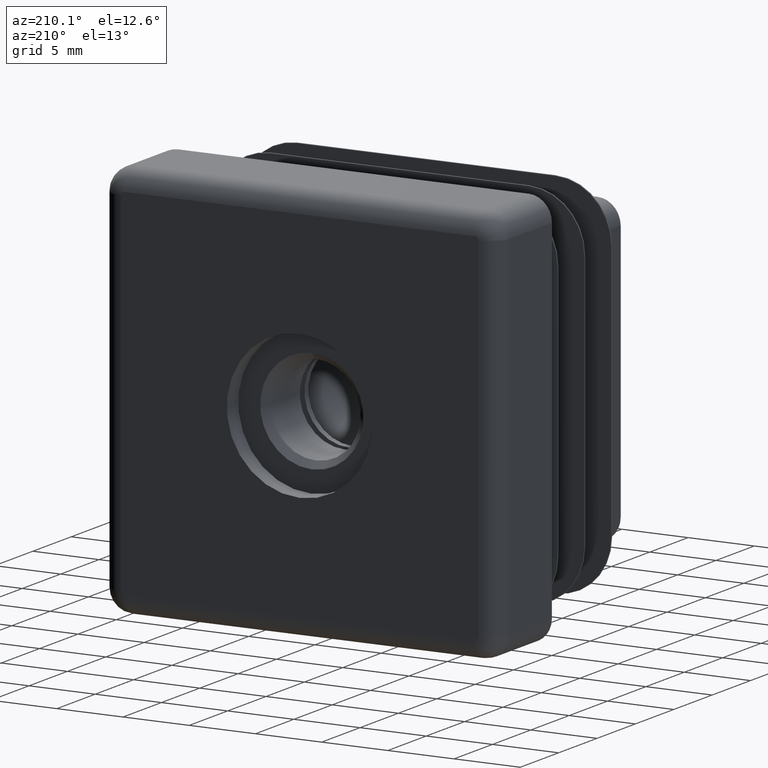
[diagram: clean part render]
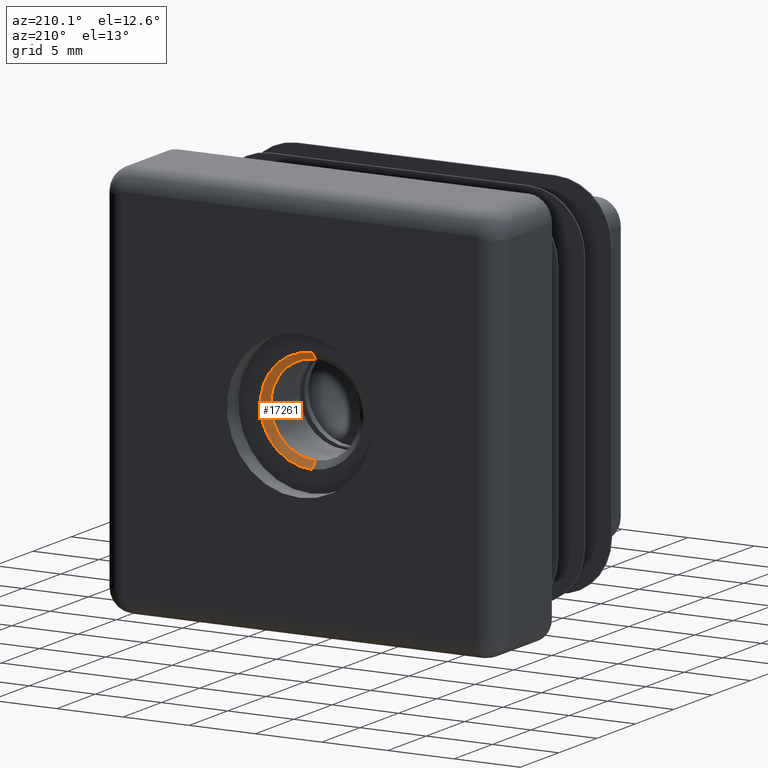
[diagram: same view with one face highlighted and labeled with its STEP entity id]
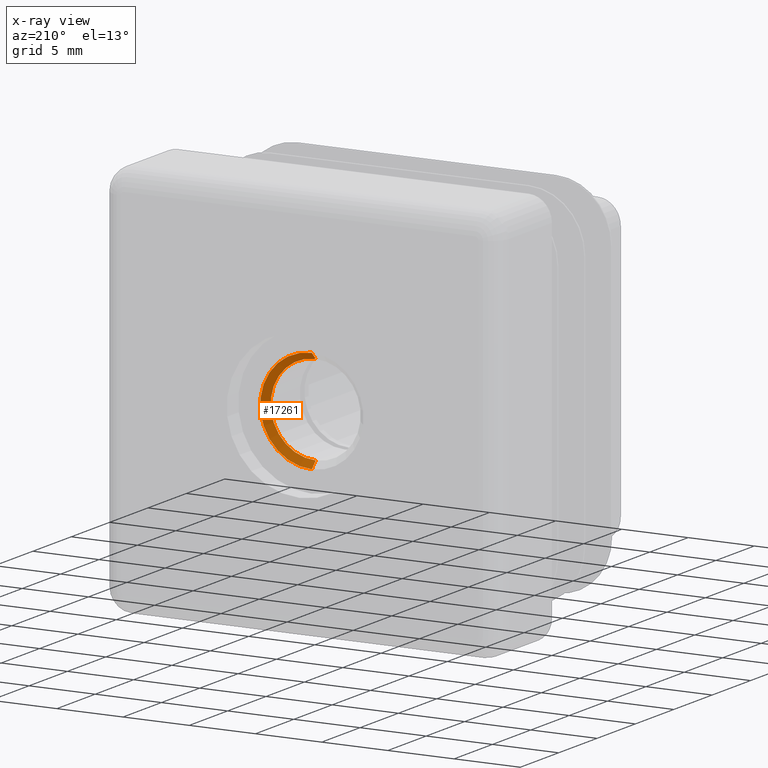
[diagram: x-ray of the same camera — body ghosted, the highlighted face saturated]
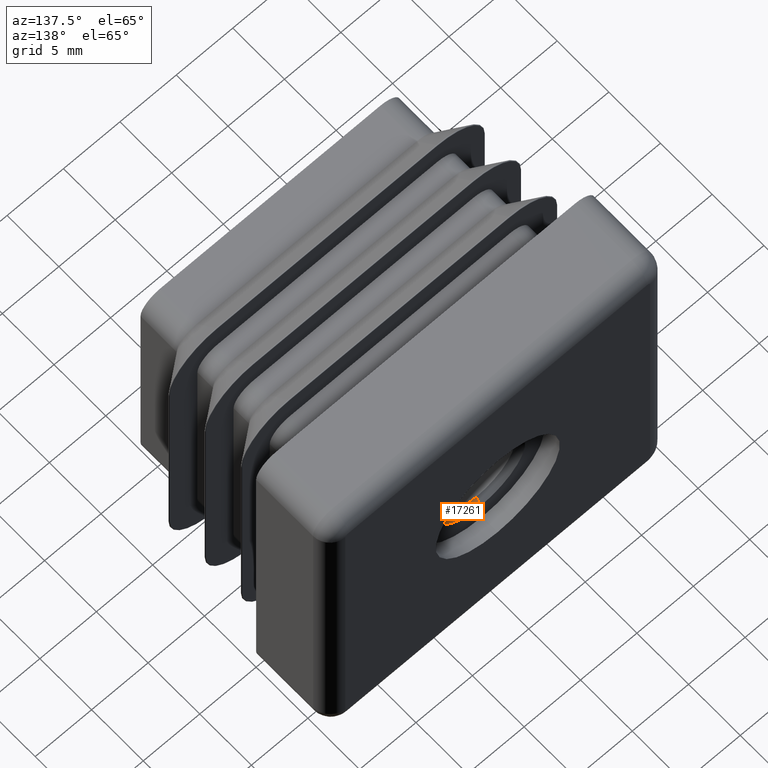
[diagram: same view with one face highlighted and labeled with its STEP entity id]
A machine part, auxiliary view. The second image highlights one B-rep face of the part: STEP entity #17261.
The next image is the same camera in x-ray: the body ghosted, the highlighted face saturated — about 0% of this face is hidden behind the body in this view.
A second angle (auxiliary view) of the same face is appended — the face is thin or edge-on in the first view.
In plain terms, the highlighted conical surface has half-angle 45 deg.
Its self-contained STEP definition (entity closure, byte-faithful):
#490 = VERTEX_POINT ( 'NONE', #4802 ) ;
#1412 = DIRECTION ( 'NONE',  ( 0.000000000000000000, 1.000000000000000000, 0.000000000000000000 ) ) ;
#1534 = EDGE_LOOP ( 'NONE', ( #20612, #14272, #7315, #22051 ) ) ;
#2901 = CARTESIAN_POINT ( 'NONE',  ( 0.000000000000000000, 4.900000000000003020, 0.000000000000000000 ) ) ;
#3270 = FACE_OUTER_BOUND ( 'NONE', #1534, .T. ) ;
#4056 = DIRECTION ( 'NONE',  ( 8.659560562354982162E-17, 0.7071067811865435759, -0.7071067811865515695 ) ) ;
#4207 = EDGE_CURVE ( 'NONE', #13734, #490, #21268, .T. ) ;
#4233 = VERTEX_POINT ( 'NONE', #20310 ) ;
#4618 = CONICAL_SURFACE ( 'NONE', #12910, 3.399999999999995470, 0.7853981633974539411 ) ;
#4802 = CARTESIAN_POINT ( 'NONE',  ( 0.000000000000000000, 5.399999999999999467, 3.899999999999997247 ) ) ;
#4935 = DIRECTION ( 'NONE',  ( 0.000000000000000000, 0.7071067811865435759, 0.7071067811865515695 ) ) ;
#5838 = EDGE_CURVE ( 'NONE', #4233, #9056, #20171, .T. ) ;
#6640 = AXIS2_PLACEMENT_3D ( 'NONE', #2901, #1412, #18666 ) ;
#7315 = ORIENTED_EDGE ( 'NONE', *, *, #4207, .T. ) ;
#7463 = DIRECTION ( 'NONE',  ( 0.000000000000000000, 0.000000000000000000, 1.000000000000000000 ) ) ;
#8949 = CIRCLE ( 'NONE', #6640, 3.399999999999995470 ) ;
#9056 = VERTEX_POINT ( 'NONE', #22070 ) ;
#9997 = AXIS2_PLACEMENT_3D ( 'NONE', #11347, #11495, #16562 ) ;
#11347 = CARTESIAN_POINT ( 'NONE',  ( 0.000000000000000000, 5.399999999999999467, 0.000000000000000000 ) ) ;
#11495 = DIRECTION ( 'NONE',  ( 0.000000000000000000, -1.000000000000000000, 0.000000000000000000 ) ) ;
#11977 = EDGE_CURVE ( 'NONE', #13734, #4233, #8949, .T. ) ;
#12910 = AXIS2_PLACEMENT_3D ( 'NONE', #19442, #14204, #7463 ) ;
#13226 = VECTOR ( 'NONE', #4935, 1000.000000000000000 ) ;
#13734 = VERTEX_POINT ( 'NONE', #15184 ) ;
#14204 = DIRECTION ( 'NONE',  ( 0.000000000000000000, 1.000000000000000000, 0.000000000000000000 ) ) ;
#14272 = ORIENTED_EDGE ( 'NONE', *, *, #11977, .F. ) ;
#15184 = CARTESIAN_POINT ( 'NONE',  ( 0.000000000000000000, 4.900000000000003020, 3.399999999999995470 ) ) ;
#16562 = DIRECTION ( 'NONE',  ( 0.000000000000000000, 0.000000000000000000, -1.000000000000000000 ) ) ;
#17261 = ADVANCED_FACE ( 'NONE', ( #3270 ), #4618, .F. ) ;
#18096 = CIRCLE ( 'NONE', #9997, 3.899999999999997247 ) ;
#18106 = EDGE_CURVE ( 'NONE', #9056, #490, #18096, .T. ) ;
#18666 = DIRECTION ( 'NONE',  ( 0.000000000000000000, 0.000000000000000000, -1.000000000000000000 ) ) ;
#19442 = CARTESIAN_POINT ( 'NONE',  ( 0.000000000000000000, 4.900000000000003020, 0.000000000000000000 ) ) ;
#19640 = VECTOR ( 'NONE', #4056, 1000.000000000000000 ) ;
#19812 = CARTESIAN_POINT ( 'NONE',  ( 4.163799117100995629E-16, 4.900000000000003020, -3.399999999999995470 ) ) ;
#20171 = LINE ( 'NONE', #19812, #19640 ) ;
#20310 = CARTESIAN_POINT ( 'NONE',  ( 4.163799117100995629E-16, 4.900000000000003020, -3.399999999999995470 ) ) ;
#20612 = ORIENTED_EDGE ( 'NONE', *, *, #5838, .F. ) ;
#21268 = LINE ( 'NONE', #22102, #13226 ) ;
#22051 = ORIENTED_EDGE ( 'NONE', *, *, #18106, .F. ) ;
#22070 = CARTESIAN_POINT ( 'NONE',  ( 4.776122516674674328E-16, 5.399999999999999467, -3.899999999999997247 ) ) ;
#22102 = CARTESIAN_POINT ( 'NONE',  ( 0.000000000000000000, 4.900000000000003020, 3.399999999999995470 ) ) ;